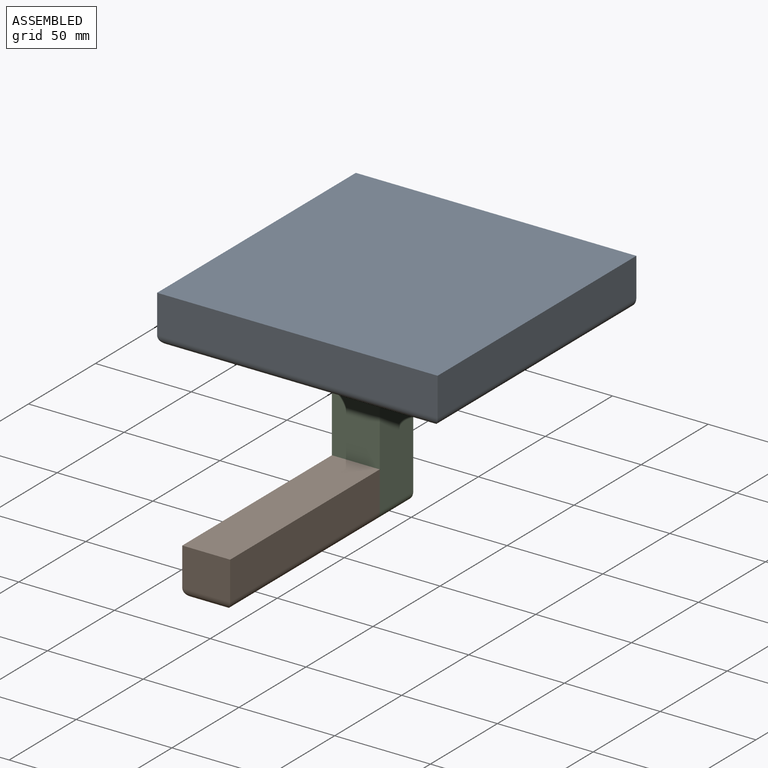
[diagram: assembled view]
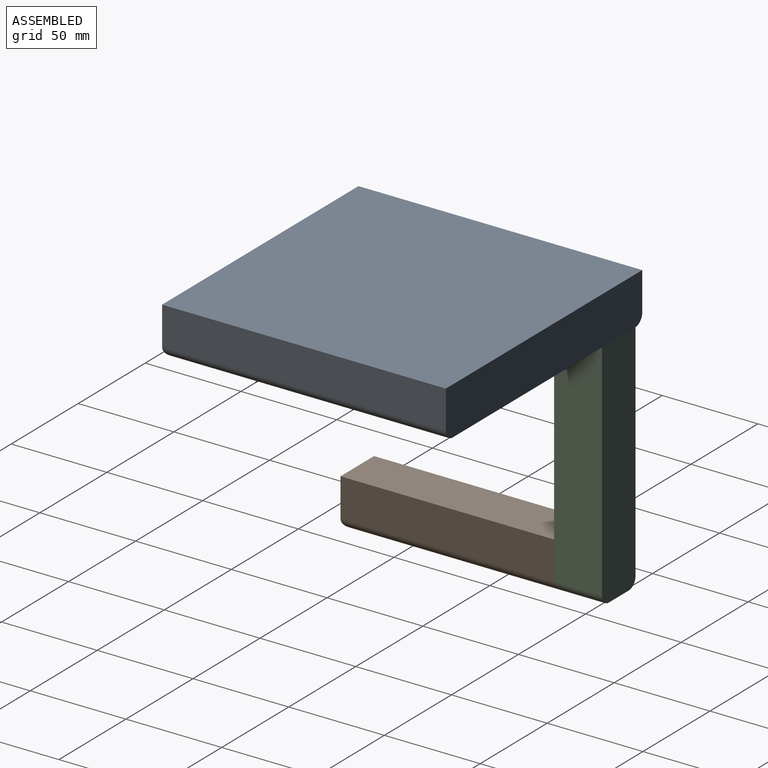
[diagram: assembled view, second angle]
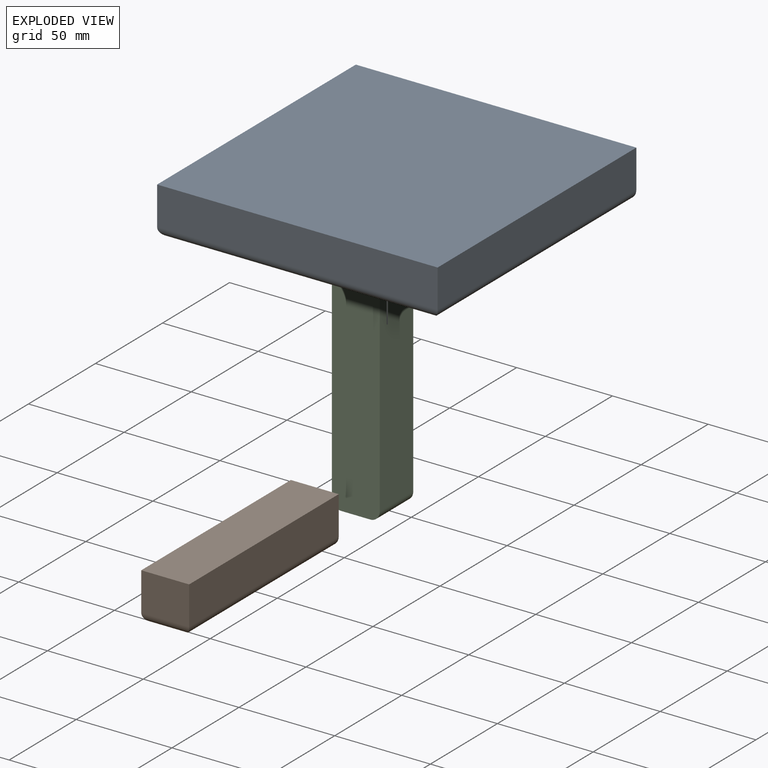
[diagram: exploded view]
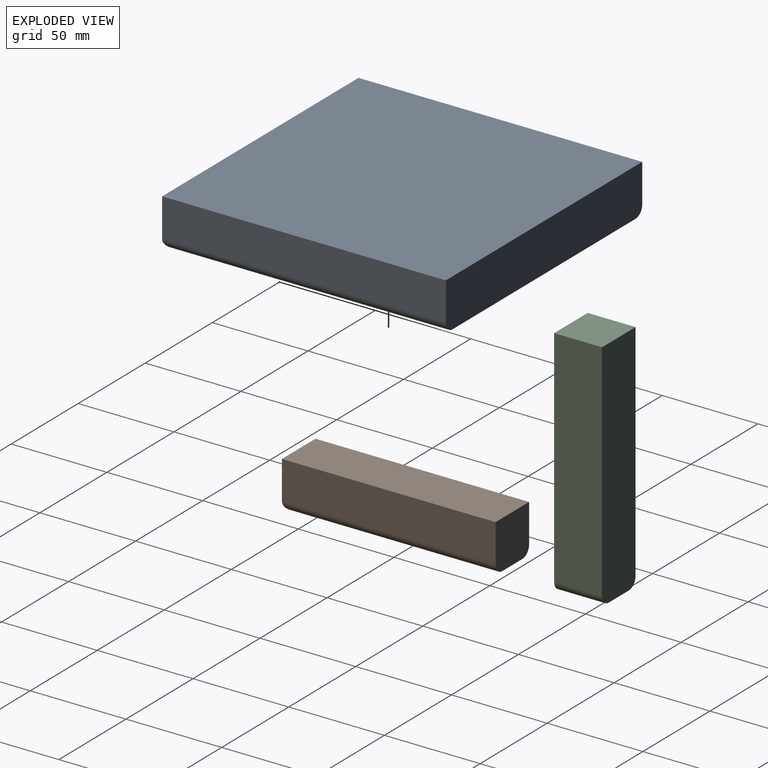
[diagram: exploded view, second angle]
ASSEMBLY  parts=3 mates=2
PART A: 9 faces, bbox 146.5x148.2x25 mm
  f0: plane 148.23x20mm, normal (-1,0,0), area 2964.6mm2, adj f1,f3,f4,f6
  f1: plane 146.51x20mm, normal (0,-1,0), area 2930.2mm2, adj f0,f2,f4,f7
  f2: plane 148.23x20mm, normal (1,0,0), area 2964.6mm2, adj f1,f3,f4,f8
  f3: plane 146.51x25mm, normal (0,1,0), area 3652mm2, adj f0,f2,f4,f5,f6,f8
  f4: plane 148.23x146.51mm, normal (0,0,1), area 21717.1mm2, adj f0,f1,f2,f3
  f5: plane 143.23x136.51mm, normal (0,0,-1), area 19552.2mm2, adj f3,f6,f7,f8
  f6: cylinder r=5mm len=148.23mm, axis (0,-1,0), area 1149.9mm2, adj f0,f3,f5,f7
  f7: cylinder r=5mm len=146.51mm, axis (1,0,0), area 1122.1mm2, adj f1,f5,f6,f8
  f8: cylinder r=5mm len=148.23mm, axis (0,1,0), area 1149.9mm2, adj f2,f3,f5,f7
PART B: 9 faces, bbox 25x25x111.6 mm
  f0: plane 25x25mm, normal (0,0,1), area 614.3mm2, adj f1,f3,f4,f5,f6,f7
  f1: plane 111.6x25mm, normal (0,-1,0), area 2790.1mm2, adj f0,f2,f4,f5
  f2: plane 25x20mm, normal (0,0,-1), area 500mm2, adj f1,f4,f5,f8
  f3: plane 106.6x15mm, normal (0,1,0), area 1599mm2, adj f0,f6,f7,f8
  f4: plane 111.6x20mm, normal (1,0,0), area 2232.1mm2, adj f0,f1,f2,f6
  f5: plane 111.6x20mm, normal (-1,0,0), area 2232.1mm2, adj f0,f1,f2,f7
  f6: cylinder r=5mm len=111.6mm, axis (0,0,-1), area 862.3mm2, adj f0,f3,f4,f8
  f7: cylinder r=5mm len=111.6mm, axis (0,0,1), area 862.3mm2, adj f0,f3,f5,f8
  f8: cylinder r=5mm len=25mm, axis (1,0,0), area 167.8mm2, adj f2,f3,f6,f7
PART C: 8 faces, bbox 25x25x122.4 mm
  f0: plane 25x15mm, normal (0,0,1), area 375mm2, adj f4,f5,f6,f7
  f1: plane 117.43x25mm, normal (-1,0,0), area 2935.7mm2, adj f2,f4,f5,f6
  f2: plane 25x25mm, normal (0,0,-1), area 625mm2, adj f1,f3,f4,f5
  f3: plane 117.43x25mm, normal (1,0,0), area 2935.7mm2, adj f2,f4,f5,f7
  f4: plane 122.43x25mm, normal (0,-1,0), area 3050mm2, adj f0,f1,f2,f3,f6,f7
  f5: plane 122.43x25mm, normal (0,1,0), area 3050mm2, adj f0,f1,f2,f3,f6,f7
  f6: cylinder r=5mm len=25mm, axis (0,-1,0), area 196.3mm2, adj f0,f1,f4,f5
  f7: cylinder r=5mm len=25mm, axis (0,1,0), area 196.3mm2, adj f0,f3,f4,f5
PLACE A t=(589.95,131.76,-114.89)mm
PLACE B rot(axis=(-1,0,0),90deg) t=(521.62,107.97,-240.1)mm
PLACE C rot(axis=(0,1,0),180deg) t=(536.78,206.29,-170.67)mm
MATE fastened C.f2 <-> A.f5  axis (0,0,1) through (521.62,206.29,-114.89)mm
MATE fastened B.f0 <-> C.f4  axis (0,1,0) through (526.62,181.29,-237.32)mm
